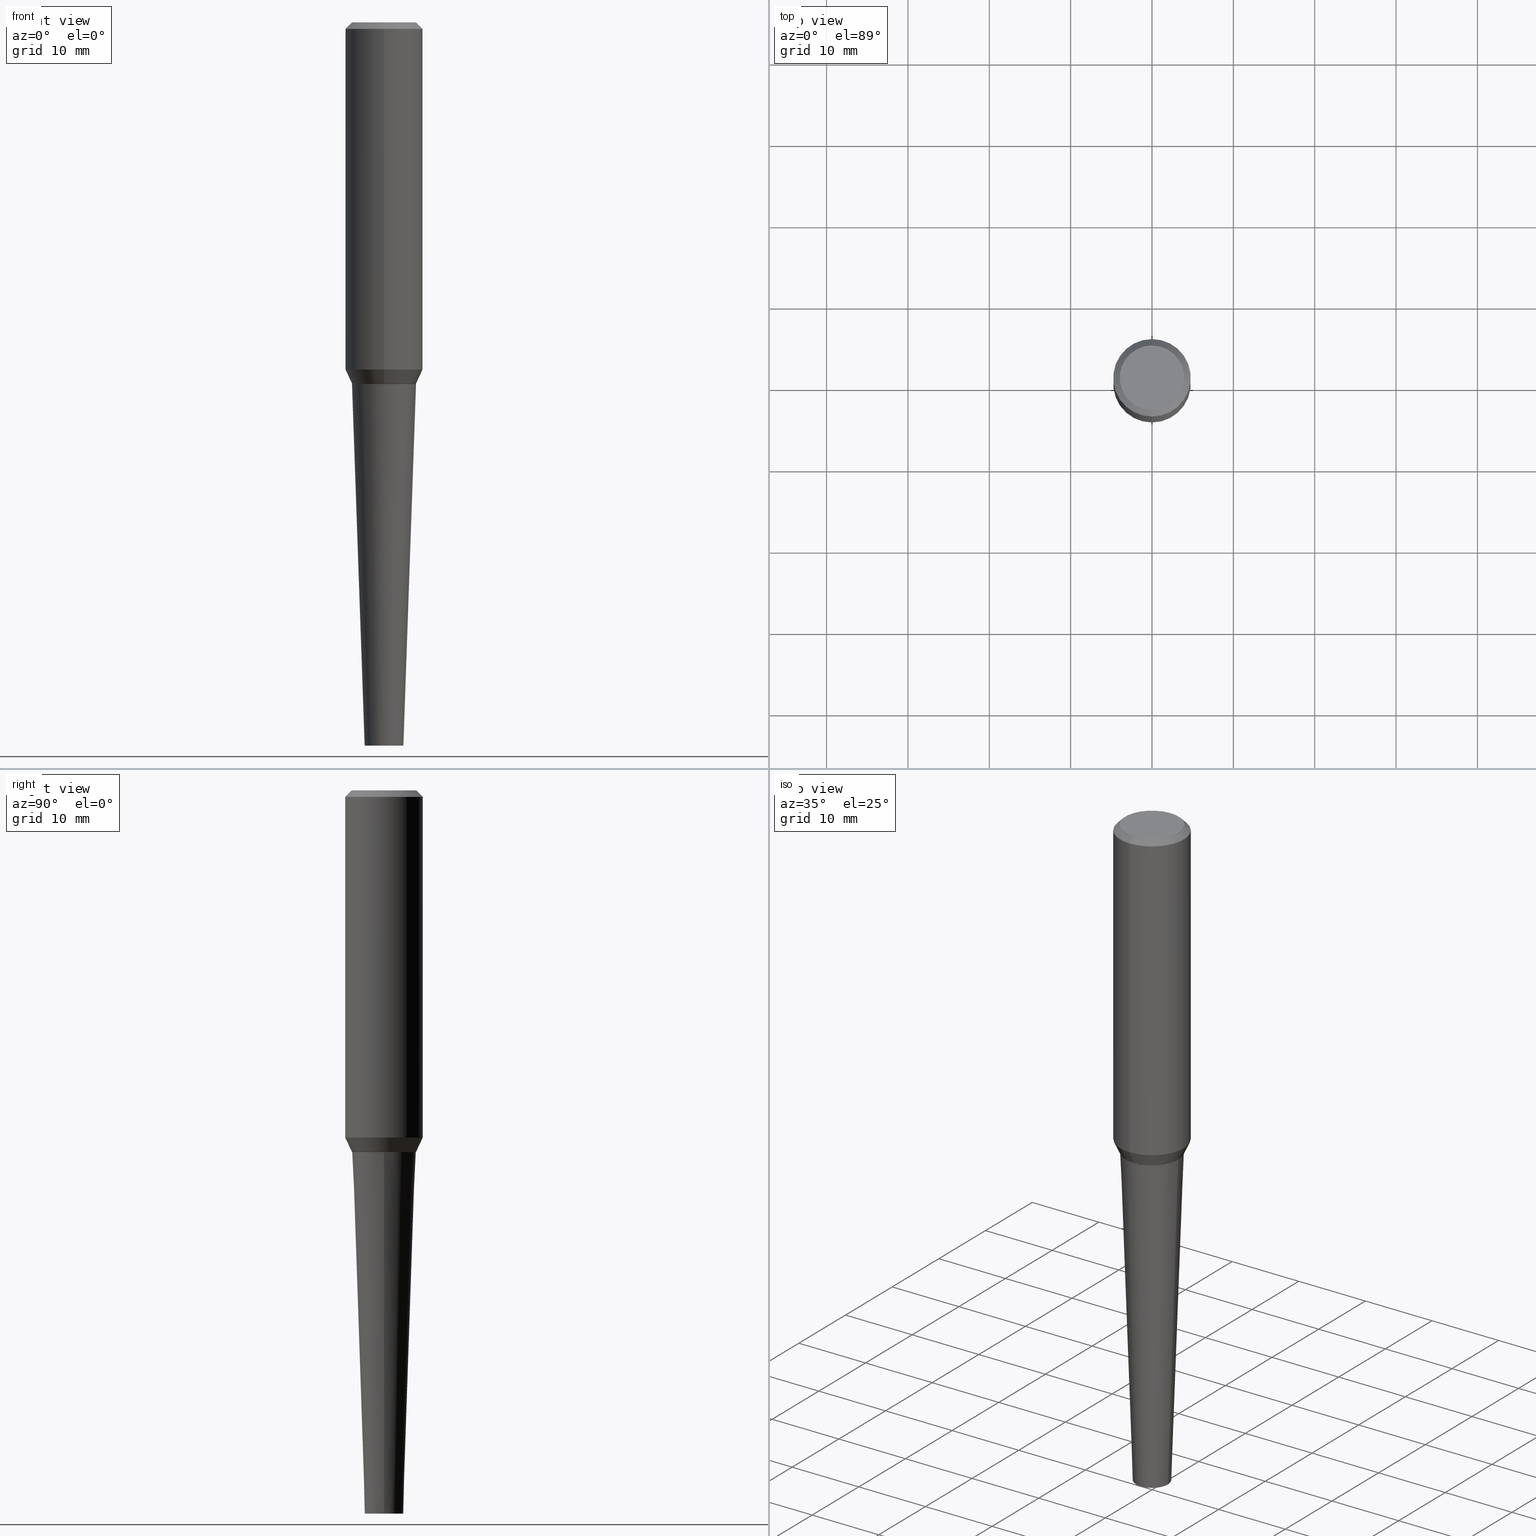
[diagram: canonical four-view strip — front | top / right | iso, engineering-drawing reading convention]
A machine part, canonical four-view strip (front | top / right | iso — engineering-drawing reading convention). The complete STEP part file that produces these views, byte-faithful:
ISO-10303-21;
HEADER;
FILE_DESCRIPTION (( 'STEP AP203' ),
    '1' );
FILE_NAME ('32354.STEP',
    '2024-03-04T15:08:24',
    ( '' ),
    ( '' ),
    'SwSTEP 2.0',
    'SolidWorks 2023',
    '' );
FILE_SCHEMA (( 'CONFIG_CONTROL_DESIGN' ));
ENDSEC;

DATA;
#1 = EDGE_CURVE ( 'NONE', #62, #248, #333, .T. ) ;
#2 = DIRECTION ( 'NONE',  ( -6.982962677686265133E-15, -1.000000000000000000, 3.539549315485986263E-15 ) ) ;
#3 = EDGE_CURVE ( 'NONE', #72, #51, #289, .T. ) ;
#4 = CARTESIAN_POINT ( 'NONE',  ( 4.343405291364929891E-29, -6.018677160785112170E-15, -1.750000000000000222 ) ) ;
#5 = PRODUCT ( '32354', '32354', '', ( #375 ) ) ;
#6 = ORIENTED_EDGE ( 'NONE', *, *, #141, .T. ) ;
#7 = CARTESIAN_POINT ( 'NONE',  ( 1.332267629550185482E-15, 0.1874999999999996947, -5.735975815650552031E-16 ) ) ;
#8 = CLOSED_SHELL ( 'NONE', ( #317, #64, #347, #77, #98, #194, #269, #283, #113, #273 ) ) ;
#9 = CONICAL_SURFACE ( 'NONE', #153, 0.1875000000000004718, 0.7853981633974463916 ) ;
#10 = LOCAL_TIME ( 10, 8, 24.00000000000000000, #277 ) ;
#11 = DIRECTION ( 'NONE',  ( 2.676116305263811246E-29, -3.161180992522094459E-15, -1.000000000000000000 ) ) ;
#12 = CALENDAR_DATE ( 2024, 4, 3 ) ;
#13 = CARTESIAN_POINT ( 'NONE',  ( -1.084441645997670835E-15, -0.1552982159654152650, -1.749063130645136077 ) ) ;
#14 = CC_DESIGN_PERSON_AND_ORGANIZATION_ASSIGNMENT ( #314, #21, ( #121 ) ) ;
#15 = ADVANCED_BREP_SHAPE_REPRESENTATION ( '32354', ( #332, #48, #356 ), #393 ) ;
#16 = DIRECTION ( 'NONE',  ( -2.951127548643978022E-15, -0.4226182617406972208, 0.9063077870366510469 ) ) ;
#17 = ORIENTED_EDGE ( 'NONE', *, *, #310, .F. ) ;
#18 =( LENGTH_UNIT ( ) NAMED_UNIT ( * ) SI_UNIT ( $, .METRE. ) );
#19 = VECTOR ( 'NONE', #44, 39.37007874015748143 ) ;
#20 = ORIENTED_EDGE ( 'NONE', *, *, #363, .T. ) ;
#21 = PERSON_AND_ORGANIZATION_ROLE ( 'classification_officer' ) ;
#22 = APPROVAL ( #148, 'UNSPECIFIED' ) ;
#23 = AXIS2_PLACEMENT_3D ( 'NONE', #211, #303, #85 ) ;
#24 = VERTEX_POINT ( 'NONE', #65 ) ;
#25 = COORDINATED_UNIVERSAL_TIME_OFFSET ( 5, 0, .BEHIND. ) ;
#26 = VERTEX_POINT ( 'NONE', #361 ) ;
#27 = ORIENTED_EDGE ( 'NONE', *, *, #167, .F. ) ;
#28 = LINE ( 'NONE', #224, #164 ) ;
#29 = ORIENTED_EDGE ( 'NONE', *, *, #239, .F. ) ;
#30 = DIRECTION ( 'NONE',  ( -0.03489949670249375274, 3.737330261384596316E-15, 0.9993908270190959842 ) ) ;
#31 = LOCAL_TIME ( 10, 8, 24.00000000000000000, #25 ) ;
#32 = CARTESIAN_POINT ( 'NONE',  ( 1.200196710227326894E-15, 0.1562499999999999445, -4.302941219615301370E-16 ) ) ;
#33 = EDGE_CURVE ( 'NONE', #275, #383, #80, .T. ) ;
#34 = DIRECTION ( 'NONE',  ( -2.676116305263811806E-29, 3.161180992522094064E-15, 1.000000000000000000 ) ) ;
#35 = DIRECTION ( 'NONE',  ( -2.445468806185136597E-29, 3.491481338843145583E-15, 1.000000000000000000 ) ) ;
#36 = CARTESIAN_POINT ( 'NONE',  ( 4.156093693560677196E-29, -5.797414033508819911E-15, -1.680006181930203013 ) ) ;
#37 = DIRECTION ( 'NONE',  ( 1.000000000000000000, -6.982962677686257244E-15, 0.000000000000000000 ) ) ;
#38 = AXIS2_PLACEMENT_3D ( 'NONE', #360, #34, #389 ) ;
#39 = DIRECTION ( 'NONE',  ( 2.676116305263811806E-29, -3.161180992522094064E-15, -1.000000000000000000 ) ) ;
#40 = DIRECTION ( 'NONE',  ( -2.676116305263811806E-29, 3.161180992522094064E-15, 1.000000000000000000 ) ) ;
#41 = PERSON_AND_ORGANIZATION_ROLE ( 'design_owner' ) ;
#42 = CYLINDRICAL_SURFACE ( 'NONE', #267, 0.1875000000000001943 ) ;
#43 = DESIGN_CONTEXT ( 'detailed design', #53, 'design' ) ;
#44 = DIRECTION ( 'NONE',  ( -2.676116305263811806E-29, 3.161180992522094459E-15, 1.000000000000000000 ) ) ;
#45 = EDGE_CURVE ( 'NONE', #403, #308, #387, .T. ) ;
#46 = VECTOR ( 'NONE', #300, 39.37007874015748143 ) ;
#47 = CARTESIAN_POINT ( 'NONE',  ( -1.084441645997671229E-15, -0.1552982159654153482, -1.749063130645136077 ) ) ;
#48 = MANIFOLD_SOLID_BREP ( 'Body-Move/Copy2[2]', #8 ) ;
#49 = EDGE_LOOP ( 'NONE', ( #343, #132, #99, #350 ) ) ;
#50 = DIRECTION ( 'NONE',  ( 6.982962677686265922E-15, 1.000000000000000000, -3.161180992522094459E-15 ) ) ;
#51 = VERTEX_POINT ( 'NONE', #198 ) ;
#52 = EDGE_CURVE ( 'NONE', #63, #62, #284, .T. ) ;
#53 = APPLICATION_CONTEXT ( 'configuration controlled 3d designs of mechanical parts and assemblies' ) ;
#54 = CIRCLE ( 'NONE', #372, 0.09375000000000006939 ) ;
#55 = ORIENTED_EDGE ( 'NONE', *, *, #180, .T. ) ;
#56 = EDGE_LOOP ( 'NONE', ( #222, #223 ) ) ;
#57 = EDGE_LOOP ( 'NONE', ( #27, #83, #226, #410 ) ) ;
#58 = EDGE_CURVE ( 'NONE', #62, #63, #183, .T. ) ;
#59 = CLOSED_SHELL ( 'NONE', ( #404, #376, #92, #299 ) ) ;
#60 = APPROVAL_PERSON_ORGANIZATION ( #249, #177, #215 ) ;
#61 = ORIENTED_EDGE ( 'NONE', *, *, #130, .T. ) ;
#62 = VERTEX_POINT ( 'NONE', #189 ) ;
#63 = VERTEX_POINT ( 'NONE', #110 ) ;
#64 = ADVANCED_FACE ( 'NONE', ( #352 ), #328, .T. ) ;
#65 = CARTESIAN_POINT ( 'NONE',  ( 0.1548613466105459580, -7.191483346573183541E-15, -1.750000000000000000 ) ) ;
#66 = CARTESIAN_POINT ( 'NONE',  ( 6.546527510331736872E-16, 0.09374999999998785694, -3.500000000000000444 ) ) ;
#67 = VERTEX_POINT ( 'NONE', #32 ) ;
#68 = FACE_OUTER_BOUND ( 'NONE', #281, .T. ) ;
#69 = CIRCLE ( 'NONE', #111, 0.1548613466105459580 ) ;
#70 = DIRECTION ( 'NONE',  ( -2.676116305263811806E-29, 3.161180992522094064E-15, 1.000000000000000000 ) ) ;
#71 = FACE_OUTER_BOUND ( 'NONE', #341, .T. ) ;
#72 = VERTEX_POINT ( 'NONE', #202 ) ;
#73 = DIRECTION ( 'NONE',  ( 2.438088387897960049E-29, -3.491481338843145188E-15, -1.000000000000000000 ) ) ;
#74 = AXIS2_PLACEMENT_3D ( 'NONE', #4, #139, #390 ) ;
#75 = CARTESIAN_POINT ( 'NONE',  ( -3.397982428467408395E-30, -4.866104238714468673E-16, 1.912385453283800096E-17 ) ) ;
#76 = PLANE ( 'NONE',  #406 ) ;
#77 = ADVANCED_FACE ( 'NONE', ( #260 ), #329, .T. ) ;
#78 = APPLICATION_PROTOCOL_DEFINITION ( 'international standard', 'config_control_design', 1994, #53 ) ;
#79 = CARTESIAN_POINT ( 'NONE',  ( -2.561696083072463877E-30, -5.853973298877627382E-16, -0.03125000000000010408 ) ) ;
#80 = CIRCLE ( 'NONE', #254, 0.1875000000000004718 ) ;
#81 = CC_DESIGN_APPROVAL ( #398, ( #278 ) ) ;
#82 = CARTESIAN_POINT ( 'NONE',  ( -1.286343374582167887E-15, -0.1875000000000010270, -0.03124999999999950734 ) ) ;
#83 = ORIENTED_EDGE ( 'NONE', *, *, #52, .T. ) ;
#84 = EDGE_CURVE ( 'NONE', #248, #72, #220, .T. ) ;
#85 = DIRECTION ( 'NONE',  ( -6.982962677686265922E-15, -1.000000000000000000, 3.161180992522094459E-15 ) ) ;
#86 = EDGE_LOOP ( 'NONE', ( #182, #379, #188, #212 ) ) ;
#87 = CC_DESIGN_APPROVAL ( #177, ( #262 ) ) ;
#88 = CIRCLE ( 'NONE', #23, 0.1562500000000004163 ) ;
#89 = APPROVAL_STATUS ( 'not_yet_approved' ) ;
#90 = ORIENTED_EDGE ( 'NONE', *, *, #363, .F. ) ;
#91 = CALENDAR_DATE ( 2024, 4, 3 ) ;
#92 = ADVANCED_FACE ( 'NONE', ( #71 ), #392, .T. ) ;
#93 = ORIENTED_EDGE ( 'NONE', *, *, #239, .T. ) ;
#94 = SECURITY_CLASSIFICATION_LEVEL ( 'unclassified' ) ;
#95 = AXIS2_PLACEMENT_3D ( 'NONE', #134, #40, #320 ) ;
#96 = ORGANIZATION ( 'UNSPECIFIED', 'UNSPECIFIED', '' ) ;
#97 = ORIENTED_EDGE ( 'NONE', *, *, #127, .T. ) ;
#98 = ADVANCED_FACE ( 'NONE', ( #166 ), #131, .T. ) ;
#99 = ORIENTED_EDGE ( 'NONE', *, *, #33, .F. ) ;
#100 = CARTESIAN_POINT ( 'NONE',  ( -3.397982428467409796E-30, -4.866104238714466701E-16, 6.364040812004835480E-17 ) ) ;
#101 = CARTESIAN_POINT ( 'NONE',  ( 8.559140821647976968E-29, -1.222018468595100934E-14, -3.500000000000000000 ) ) ;
#102 = ORIENTED_EDGE ( 'NONE', *, *, #58, .F. ) ;
#103 = DIRECTION ( 'NONE',  ( -2.676116305263811806E-29, 3.161180992522094064E-15, 1.000000000000000000 ) ) ;
#104 = DIRECTION ( 'NONE',  ( 1.000000000000000000, -6.982962677686257244E-15, 0.000000000000000000 ) ) ;
#105 = CIRCLE ( 'NONE', #221, 0.1875000000000004718 ) ;
#106 = DIRECTION ( 'NONE',  ( -2.676116305263811806E-29, 3.161180992522094064E-15, 1.000000000000000000 ) ) ;
#107 = PRODUCT_RELATED_PRODUCT_CATEGORY ( 'detail', '', ( #5 ) ) ;
#108 = CC_DESIGN_PERSON_AND_ORGANIZATION_ASSIGNMENT ( #181, #309, ( #262 ) ) ;
#109 = DIRECTION ( 'NONE',  ( -2.676116305263811806E-29, 3.161180992522094064E-15, 1.000000000000000000 ) ) ;
#110 = CARTESIAN_POINT ( 'NONE',  ( 1.100131763735019205E-15, 0.1543613466105398235, -1.750000000000000666 ) ) ;
#111 = AXIS2_PLACEMENT_3D ( 'NONE', #203, #225, #414 ) ;
#112 = CARTESIAN_POINT ( 'NONE',  ( -0.09375000000000006939, -8.281893582654957434E-15, -3.500000000000000000 ) ) ;
#113 = ADVANCED_FACE ( 'NONE', ( #334 ), #42, .T. ) ;
#114 = DIRECTION ( 'NONE',  ( 1.000000000000000000, -6.982962677686257244E-15, 0.000000000000000000 ) ) ;
#115 = DIRECTION ( 'NONE',  ( 0.000000000000000000, 0.000000000000000000, 1.000000000000000000 ) ) ;
#116 = CARTESIAN_POINT ( 'NONE',  ( -1.286343374582167887E-15, -0.1875000000000010270, -0.03124999999999950734 ) ) ;
#117 = APPROVAL_STATUS ( 'not_yet_approved' ) ;
#118 = EDGE_CURVE ( 'NONE', #133, #51, #201, .T. ) ;
#119 = AXIS2_PLACEMENT_3D ( 'NONE', #388, #136, #2 ) ;
#120 = AXIS2_PLACEMENT_3D ( 'NONE', #237, #241, #371 ) ;
#121 = SECURITY_CLASSIFICATION ( '', '', #94 ) ;
#122 = CARTESIAN_POINT ( 'NONE',  ( 8.559140821647976968E-29, -1.222018468595100934E-14, -3.500000000000000000 ) ) ;
#123 =( NAMED_UNIT ( * ) PLANE_ANGLE_UNIT ( ) SI_UNIT ( $, .RADIAN. ) );
#124 = APPROVAL_DATE_TIME ( #405, #177 ) ;
#125 = AXIS2_PLACEMENT_3D ( 'NONE', #168, #106, #355 ) ;
#126 = CONICAL_SURFACE ( 'NONE', #342, 0.09375000000000006939, 0.03490658503987936756 ) ;
#127 = EDGE_CURVE ( 'NONE', #26, #67, #208, .T. ) ;
#128 = ORIENTED_EDGE ( 'NONE', *, *, #45, .T. ) ;
#129 = COORDINATED_UNIVERSAL_TIME_OFFSET ( 5, 0, .BEHIND. ) ;
#130 = EDGE_CURVE ( 'NONE', #72, #248, #147, .T. ) ;
#131 = CONICAL_SURFACE ( 'NONE', #74, 0.1543613466105458465, 0.7853981633974300713 ) ;
#132 = ORIENTED_EDGE ( 'NONE', *, *, #227, .T. ) ;
#133 = VERTEX_POINT ( 'NONE', #318 ) ;
#134 = CARTESIAN_POINT ( 'NONE',  ( -3.397982428467408395E-30, -4.866104238714468673E-16, 1.912385453283800096E-17 ) ) ;
#135 = CC_DESIGN_DATE_AND_TIME_ASSIGNMENT ( #408, #218, ( #121 ) ) ;
#136 = DIRECTION ( 'NONE',  ( -2.676116305263811806E-29, 3.161180992522094064E-15, 1.000000000000000000 ) ) ;
#137 = VECTOR ( 'NONE', #354, 39.37007874015748143 ) ;
#138 = CARTESIAN_POINT ( 'NONE',  ( 1.103460192307291292E-15, 0.1552982159654033023, -1.749063130645137187 ) ) ;
#139 = DIRECTION ( 'NONE',  ( -2.676116305263811806E-29, 3.161180992522094064E-15, 1.000000000000000000 ) ) ;
#140 = UNCERTAINTY_MEASURE_WITH_UNIT (LENGTH_MEASURE( 1.000000000000000082E-05 ), #402, 'distance_accuracy_value', 'NONE');
#141 = EDGE_CURVE ( 'NONE', #308, #344, #282, .T. ) ;
#142 = FACE_OUTER_BOUND ( 'NONE', #369, .T. ) ;
#143 = PLANE ( 'NONE',  #413 ) ;
#144 = FACE_OUTER_BOUND ( 'NONE', #407, .T. ) ;
#145 = PERSON_AND_ORGANIZATION ( #285, #96 ) ;
#146 = DIRECTION ( 'NONE',  ( -1.000000000000000000, 6.982962677686265922E-15, -4.876176775795935793E-29 ) ) ;
#147 = CIRCLE ( 'NONE', #38, 0.1552982159654093253 ) ;
#148 = APPROVAL_STATUS ( 'not_yet_approved' ) ;
#149 = ORIENTED_EDGE ( 'NONE', *, *, #245, .F. ) ;
#150 = EDGE_CURVE ( 'NONE', #51, #133, #173, .T. ) ;
#151 = ORIENTED_EDGE ( 'NONE', *, *, #214, .F. ) ;
#152 = PERSON_AND_ORGANIZATION ( #285, #96 ) ;
#153 = AXIS2_PLACEMENT_3D ( 'NONE', #79, #176, #394 ) ;
#154 = ORIENTED_EDGE ( 'NONE', *, *, #386, .T. ) ;
#155 = CARTESIAN_POINT ( 'NONE',  ( 4.231862305310980170E-29, -6.178413065446867996E-15, -1.750000000000000222 ) ) ;
#156 = EDGE_LOOP ( 'NONE', ( #217, #256, #316, #323 ) ) ;
#157 = AXIS2_PLACEMENT_3D ( 'NONE', #36, #161, #264 ) ;
#158 = ORIENTED_EDGE ( 'NONE', *, *, #245, .T. ) ;
#159 = FACE_OUTER_BOUND ( 'NONE', #56, .T. ) ;
#160 = CARTESIAN_POINT ( 'NONE',  ( 4.343405291364929891E-29, -6.018677160785112170E-15, -1.750000000000000222 ) ) ;
#161 = DIRECTION ( 'NONE',  ( -2.676116305263811806E-29, 3.161180992522094064E-15, 1.000000000000000000 ) ) ;
#162 = DIRECTION ( 'NONE',  ( -4.937700262164458901E-15, -0.7071067811865323627, 0.7071067811865626718 ) ) ;
#163 = AXIS2_PLACEMENT_3D ( 'NONE', #160, #325, #228 ) ;
#164 = VECTOR ( 'NONE', #351, 39.37007874015748143 ) ;
#165 = CC_DESIGN_SECURITY_CLASSIFICATION ( #121, ( #262 ) ) ;
#166 = FACE_OUTER_BOUND ( 'NONE', #57, .T. ) ;
#167 = EDGE_CURVE ( 'NONE', #63, #72, #28, .T. ) ;
#168 = CARTESIAN_POINT ( 'NONE',  ( 4.340898120008478024E-29, -6.015715547188041280E-15, -1.749063130645136743 ) ) ;
#169 = CARTESIAN_POINT ( 'NONE',  ( 1.081391003597721666E-15, 0.1548613466105398240, -1.750000000000000666 ) ) ;
#170 = PERSON_AND_ORGANIZATION ( #285, #96 ) ;
#171 = LINE ( 'NONE', #340, #46 ) ;
#172 = DATE_AND_TIME ( #12, #382 ) ;
#173 = CIRCLE ( 'NONE', #157, 0.1874999999999999445 ) ;
#174 = LINE ( 'NONE', #266, #377 ) ;
#175 =( NAMED_UNIT ( * ) SI_UNIT ( $, .STERADIAN. ) SOLID_ANGLE_UNIT ( ) );
#176 = DIRECTION ( 'NONE',  ( 2.676116305263811806E-29, -3.161180992522094064E-15, -1.000000000000000000 ) ) ;
#177 = APPROVAL ( #89, 'UNSPECIFIED' ) ;
#178 = ORIENTED_EDGE ( 'NONE', *, *, #127, .F. ) ;
#179 = CALENDAR_DATE ( 2024, 4, 3 ) ;
#180 = EDGE_CURVE ( 'NONE', #133, #275, #288, .T. ) ;
#181 = PERSON_AND_ORGANIZATION ( #285, #96 ) ;
#182 = ORIENTED_EDGE ( 'NONE', *, *, #84, .T. ) ;
#183 = CIRCLE ( 'NONE', #200, 0.1543613466105458465 ) ;
#184 = CIRCLE ( 'NONE', #306, 0.1548613466105459580 ) ;
#185 = ORIENTED_EDGE ( 'NONE', *, *, #310, .T. ) ;
#186 = CALENDAR_DATE ( 2024, 4, 3 ) ;
#187 = EDGE_LOOP ( 'NONE', ( #17, #149, #93, #20 ) ) ;
#188 = ORIENTED_EDGE ( 'NONE', *, *, #118, .F. ) ;
#189 = CARTESIAN_POINT ( 'NONE',  ( -1.077899522258791490E-15, -0.1543613466105518417, -1.749999999999999556 ) ) ;
#190 = DIRECTION ( 'NONE',  ( -2.445468806185136597E-29, 3.491481338843145583E-15, 1.000000000000000000 ) ) ;
#191 = ORIENTED_EDGE ( 'NONE', *, *, #210, .T. ) ;
#192 = DIRECTION ( 'NONE',  ( -6.982962677686266711E-15, -1.000000000000000000, 2.913971193241881555E-15 ) ) ;
#193 = CARTESIAN_POINT ( 'NONE',  ( 8.559140821647976968E-29, -1.222018468595100934E-14, -3.500000000000000000 ) ) ;
#194 = ADVANCED_FACE ( 'NONE', ( #68 ), #324, .F. ) ;
#195 = CARTESIAN_POINT ( 'NONE',  ( 0.09375000000000006939, -1.287483743698409606E-14, -3.500000000000000000 ) ) ;
#196 = DIRECTION ( 'NONE',  ( 6.982962677686265922E-15, 1.000000000000000000, -3.164390592661096858E-15 ) ) ;
#197 = CARTESIAN_POINT ( 'NONE',  ( -0.09375000000000006939, -1.155405087117591384E-14, -3.500000000000000000 ) ) ;
#198 = CARTESIAN_POINT ( 'NONE',  ( 1.332267629550207570E-15, 0.1874999999999941436, -1.680006181930203457 ) ) ;
#199 = CARTESIAN_POINT ( 'NONE',  ( 4.279570410823988484E-29, -6.110092342975504671E-15, -1.750000000000000000 ) ) ;
#200 = AXIS2_PLACEMENT_3D ( 'NONE', #261, #70, #416 ) ;
#201 = CIRCLE ( 'NONE', #243, 0.1874999999999999445 ) ;
#202 = CARTESIAN_POINT ( 'NONE',  ( 1.103460192307291686E-15, 0.1552982159654033856, -1.749063130645137187 ) ) ;
#203 = CARTESIAN_POINT ( 'NONE',  ( 4.279570410823988484E-29, -6.110092342975504671E-15, -1.750000000000000000 ) ) ;
#204 = CARTESIAN_POINT ( 'NONE',  ( 4.156093693560677196E-29, -5.797414033508819911E-15, -1.680006181930203013 ) ) ;
#205 = CARTESIAN_POINT ( 'NONE',  ( 1.091087918388478582E-15, 0.1562499999999999445, -4.525523987551353755E-16 ) ) ;
#206 = LINE ( 'NONE', #7, #19 ) ;
#207 = AXIS2_PLACEMENT_3D ( 'NONE', #295, #357, #233 ) ;
#208 = CIRCLE ( 'NONE', #339, 0.1562500000000004163 ) ;
#209 = CC_DESIGN_APPROVAL ( #22, ( #121 ) ) ;
#210 = EDGE_CURVE ( 'NONE', #248, #133, #335, .T. ) ;
#211 = CARTESIAN_POINT ( 'NONE',  ( -3.397982428467409796E-30, -4.866104238714466701E-16, 6.364040812004835480E-17 ) ) ;
#212 = ORIENTED_EDGE ( 'NONE', *, *, #210, .F. ) ;
#213 = PERSON_AND_ORGANIZATION ( #285, #96 ) ;
#214 = EDGE_CURVE ( 'NONE', #403, #24, #174, .T. ) ;
#215 = APPROVAL_ROLE ( '' ) ;
#216 = CALENDAR_DATE ( 2024, 4, 3 ) ;
#217 = ORIENTED_EDGE ( 'NONE', *, *, #58, .T. ) ;
#218 = DATE_TIME_ROLE ( 'classification_date' ) ;
#219 = ORIENTED_EDGE ( 'NONE', *, *, #214, .T. ) ;
#220 = CIRCLE ( 'NONE', #125, 0.1552982159654093253 ) ;
#221 = AXIS2_PLACEMENT_3D ( 'NONE', #257, #109, #234 ) ;
#222 = ORIENTED_EDGE ( 'NONE', *, *, #45, .F. ) ;
#223 = ORIENTED_EDGE ( 'NONE', *, *, #305, .F. ) ;
#224 = CARTESIAN_POINT ( 'NONE',  ( 1.096803335162746329E-15, 0.1543613466105398235, -1.750000000000000666 ) ) ;
#225 = DIRECTION ( 'NONE',  ( -2.445468806185136597E-29, 3.491481338843145583E-15, 1.000000000000000000 ) ) ;
#226 = ORIENTED_EDGE ( 'NONE', *, *, #1, .T. ) ;
#227 = EDGE_CURVE ( 'NONE', #51, #383, #206, .T. ) ;
#228 = DIRECTION ( 'NONE',  ( -6.982962677686265133E-15, -1.000000000000000000, 3.539549315485986263E-15 ) ) ;
#229 = CONICAL_SURFACE ( 'NONE', #120, 0.1552982159654093253, 0.4363323129985830495 ) ;
#230 = CARTESIAN_POINT ( 'NONE',  ( 1.309305502066175600E-15, 0.1874999999999998890, -0.03125000000000069389 ) ) ;
#231 = DIRECTION ( 'NONE',  ( -2.676116305263811806E-29, 3.161180992522094064E-15, 1.000000000000000000 ) ) ;
#232 = CC_DESIGN_PERSON_AND_ORGANIZATION_ASSIGNMENT ( #280, #307, ( #262 ) ) ;
#233 = DIRECTION ( 'NONE',  ( 1.000000000000000000, -6.982962677686257244E-15, 0.000000000000000000 ) ) ;
#234 = DIRECTION ( 'NONE',  ( -6.982962677686265922E-15, -1.000000000000000000, 3.164390592661096858E-15 ) ) ;
#235 = AXIS2_PLACEMENT_3D ( 'NONE', #272, #395, #271 ) ;
#236 = DIRECTION ( 'NONE',  ( -2.676116305263811806E-29, 3.161180992522094064E-15, 1.000000000000000000 ) ) ;
#237 = CARTESIAN_POINT ( 'NONE',  ( 4.340898120008478024E-29, -6.015715547188041280E-15, -1.749063130645136743 ) ) ;
#238 = LINE ( 'NONE', #116, #322 ) ;
#239 = EDGE_CURVE ( 'NONE', #67, #383, #171, .T. ) ;
#240 = ORIENTED_EDGE ( 'NONE', *, *, #305, .T. ) ;
#241 = DIRECTION ( 'NONE',  ( -2.676116305263811806E-29, 3.161180992522094064E-15, 1.000000000000000000 ) ) ;
#242 = PERSON_AND_ORGANIZATION_ROLE ( 'creator' ) ;
#243 = AXIS2_PLACEMENT_3D ( 'NONE', #204, #263, #192 ) ;
#244 = FACE_OUTER_BOUND ( 'NONE', #250, .T. ) ;
#245 = EDGE_CURVE ( 'NONE', #67, #26, #88, .T. ) ;
#246 = VECTOR ( 'NONE', #162, 39.37007874015748143 ) ;
#247 = AXIS2_PLACEMENT_3D ( 'NONE', #359, #39, #196 ) ;
#248 = VERTEX_POINT ( 'NONE', #13 ) ;
#249 = PERSON_AND_ORGANIZATION ( #285, #96 ) ;
#250 = EDGE_LOOP ( 'NONE', ( #415, #61, #191, #258 ) ) ;
#251 = CC_DESIGN_DATE_AND_TIME_ASSIGNMENT ( #370, #373, ( #278 ) ) ;
#252 = APPROVAL_DATE_TIME ( #315, #22 ) ;
#253 = ORIENTED_EDGE ( 'NONE', *, *, #33, .T. ) ;
#254 = AXIS2_PLACEMENT_3D ( 'NONE', #265, #103, #291 ) ;
#255 = LOCAL_TIME ( 10, 8, 24.00000000000000000, #396 ) ;
#256 = ORIENTED_EDGE ( 'NONE', *, *, #167, .T. ) ;
#257 = CARTESIAN_POINT ( 'NONE',  ( -2.561696083072463877E-30, -5.853973298877627382E-16, -0.03125000000000010408 ) ) ;
#258 = ORIENTED_EDGE ( 'NONE', *, *, #150, .F. ) ;
#259 = CARTESIAN_POINT ( 'NONE',  ( -1.309305502066179544E-15, -0.1875000000000006661, 6.118452906307312050E-16 ) ) ;
#260 = FACE_OUTER_BOUND ( 'NONE', #156, .T. ) ;
#261 = CARTESIAN_POINT ( 'NONE',  ( 4.343405291364929891E-29, -6.018677160785112170E-15, -1.750000000000000222 ) ) ;
#262 = PRODUCT_DEFINITION_FORMATION_WITH_SPECIFIED_SOURCE ( 'ANY', '', #5, .NOT_KNOWN. ) ;
#263 = DIRECTION ( 'NONE',  ( -2.676116305263811806E-29, 3.161180992522094064E-15, 1.000000000000000000 ) ) ;
#264 = DIRECTION ( 'NONE',  ( -6.982962677686266711E-15, -1.000000000000000000, 2.913971193241881555E-15 ) ) ;
#265 = CARTESIAN_POINT ( 'NONE',  ( -2.561696083072463877E-30, -5.853973298877627382E-16, -0.03125000000000010408 ) ) ;
#266 = CARTESIAN_POINT ( 'NONE',  ( 0.09375000000000006939, -1.287483743698409606E-14, -3.500000000000000000 ) ) ;
#267 = AXIS2_PLACEMENT_3D ( 'NONE', #75, #236, #364 ) ;
#268 = DIRECTION ( 'NONE',  ( -2.445468806185136597E-29, 3.491481338843145583E-15, 1.000000000000000000 ) ) ;
#269 = ADVANCED_FACE ( 'NONE', ( #144 ), #76, .F. ) ;
#270 = APPROVAL_DATE_TIME ( #172, #398 ) ;
#271 = DIRECTION ( 'NONE',  ( -6.982962677686265133E-15, -1.000000000000000000, 3.518196235136077858E-15 ) ) ;
#272 = CARTESIAN_POINT ( 'NONE',  ( 4.340898120008478024E-29, -6.015715547188041280E-15, -1.749063130645136743 ) ) ;
#273 = ADVANCED_FACE ( 'NONE', ( #244 ), #321, .T. ) ;
#274 = APPROVAL_ROLE ( '' ) ;
#275 = VERTEX_POINT ( 'NONE', #82 ) ;
#276 = CARTESIAN_POINT ( 'NONE',  ( 0.000000000000000000, 0.000000000000000000, 0.000000000000000000 ) ) ;
#277 = COORDINATED_UNIVERSAL_TIME_OFFSET ( 5, 0, .BEHIND. ) ;
#278 = PRODUCT_DEFINITION ( 'UNKNOWN', '', #262, #43 ) ;
#279 = ORIENTED_EDGE ( 'NONE', *, *, #150, .T. ) ;
#280 = PERSON_AND_ORGANIZATION ( #285, #96 ) ;
#281 = EDGE_LOOP ( 'NONE', ( #102, #287 ) ) ;
#282 = LINE ( 'NONE', #197, #311 ) ;
#283 = ADVANCED_FACE ( 'NONE', ( #397 ), #9, .T. ) ;
#284 = CIRCLE ( 'NONE', #119, 0.1543613466105458465 ) ;
#285 = PERSON ( 'UNSPECIFIED', 'UNSPECIFIED', 'UNSPECIFIED', ('UNSPECIFIED'), ('UNSPECIFIED'), ('UNSPECIFIED') ) ;
#286 = AXIS2_PLACEMENT_3D ( 'NONE', #66, #73, #294 ) ;
#287 = ORIENTED_EDGE ( 'NONE', *, *, #52, .F. ) ;
#288 = LINE ( 'NONE', #259, #137 ) ;
#289 = LINE ( 'NONE', #138, #292 ) ;
#290 = DIRECTION ( 'NONE',  ( -2.445468806185136597E-29, 3.491481338843145583E-15, 1.000000000000000000 ) ) ;
#291 = DIRECTION ( 'NONE',  ( -6.982962677686265922E-15, -1.000000000000000000, 3.164390592661096858E-15 ) ) ;
#292 = VECTOR ( 'NONE', #391, 39.37007874015748143 ) ;
#293 = CARTESIAN_POINT ( 'NONE',  ( -1.077899522258791490E-15, -0.1543613466105518417, -1.749999999999999556 ) ) ;
#294 = DIRECTION ( 'NONE',  ( -1.000000000000000000, 6.982962677686265922E-15, -4.876176775795935793E-29 ) ) ;
#295 = CARTESIAN_POINT ( 'NONE',  ( 8.559140821647976968E-29, -1.222018468595100934E-14, -3.500000000000000000 ) ) ;
#296 = ORIENTED_EDGE ( 'NONE', *, *, #380, .F. ) ;
#297 = DIRECTION ( 'NONE',  ( 0.03489949670249375274, 3.245652539804642670E-15, 0.9993908270190959842 ) ) ;
#298 = COORDINATED_UNIVERSAL_TIME_OFFSET ( 5, 0, .BEHIND. ) ;
#299 = ADVANCED_FACE ( 'NONE', ( #304 ), #143, .F. ) ;
#300 = DIRECTION ( 'NONE',  ( 4.937700262164539365E-15, 0.7071067811865439090, -0.7071067811865511255 ) ) ;
#301 = LOCAL_TIME ( 10, 8, 24.00000000000000000, #129 ) ;
#302 = LENGTH_MEASURE_WITH_UNIT ( LENGTH_MEASURE( 0.02539999999999999897 ), #18 );
#303 = DIRECTION ( 'NONE',  ( -2.676116305263811806E-29, 3.161180992522094064E-15, 1.000000000000000000 ) ) ;
#304 = FACE_OUTER_BOUND ( 'NONE', #313, .T. ) ;
#305 = EDGE_CURVE ( 'NONE', #308, #403, #54, .T. ) ;
#306 = AXIS2_PLACEMENT_3D ( 'NONE', #199, #290, #331 ) ;
#307 = PERSON_AND_ORGANIZATION_ROLE ( 'design_supplier' ) ;
#308 = VERTEX_POINT ( 'NONE', #112 ) ;
#309 = PERSON_AND_ORGANIZATION_ROLE ( 'creator' ) ;
#310 = EDGE_CURVE ( 'NONE', #26, #275, #238, .T. ) ;
#311 = VECTOR ( 'NONE', #30, 39.37007874015748143 ) ;
#312 = APPLICATION_CONTEXT ( 'configuration controlled 3d designs of mechanical parts and assemblies' ) ;
#313 = EDGE_LOOP ( 'NONE', ( #378, #154 ) ) ;
#314 = PERSON_AND_ORGANIZATION ( #285, #96 ) ;
#315 = DATE_AND_TIME ( #186, #301 ) ;
#316 = ORIENTED_EDGE ( 'NONE', *, *, #84, .F. ) ;
#317 = ADVANCED_FACE ( 'NONE', ( #368 ), #229, .T. ) ;
#318 = CARTESIAN_POINT ( 'NONE',  ( -1.309305502066133001E-15, -0.1875000000000057454, -1.680006181930202347 ) ) ;
#319 = EDGE_LOOP ( 'NONE', ( #128, #6, #296, #151 ) ) ;
#320 = DIRECTION ( 'NONE',  ( -6.982962677686265922E-15, -1.000000000000000000, 3.161180992522093670E-15 ) ) ;
#321 = CONICAL_SURFACE ( 'NONE', #235, 0.1552982159654093253, 0.4363323129985830495 ) ;
#322 = VECTOR ( 'NONE', #365, 39.37007874015748143 ) ;
#323 = ORIENTED_EDGE ( 'NONE', *, *, #1, .F. ) ;
#324 = PLANE ( 'NONE',  #401 ) ;
#325 = DIRECTION ( 'NONE',  ( -2.676116305263811806E-29, 3.161180992522094064E-15, 1.000000000000000000 ) ) ;
#326 = DIRECTION ( 'NONE',  ( -6.982962677686265922E-15, -1.000000000000000000, 3.161180992522094459E-15 ) ) ;
#327 = CC_DESIGN_PERSON_AND_ORGANIZATION_ASSIGNMENT ( #213, #242, ( #278 ) ) ;
#328 = CYLINDRICAL_SURFACE ( 'NONE', #95, 0.1875000000000001943 ) ;
#329 = CONICAL_SURFACE ( 'NONE', #163, 0.1543613466105458465, 0.7853981633974300713 ) ;
#330 = APPROVAL_PERSON_ORGANIZATION ( #170, #398, #337 ) ;
#331 = DIRECTION ( 'NONE',  ( 1.000000000000000000, -6.982962677686268288E-15, 0.000000000000000000 ) ) ;
#332 = MANIFOLD_SOLID_BREP ( 'Body-Move/Copy2[1]', #59 ) ;
#333 = LINE ( 'NONE', #293, #246 ) ;
#334 = FACE_OUTER_BOUND ( 'NONE', #348, .T. ) ;
#335 = LINE ( 'NONE', #47, #362 ) ;
#336 = DIMENSIONAL_EXPONENTS ( 1.000000000000000000, 0.000000000000000000, 0.000000000000000000, 0.000000000000000000, 0.000000000000000000, 0.000000000000000000, 0.000000000000000000 ) ;
#337 = APPROVAL_ROLE ( '' ) ;
#338 = DIRECTION ( 'NONE',  ( -6.982962677686265922E-15, -1.000000000000000000, 3.161180992522094459E-15 ) ) ;
#339 = AXIS2_PLACEMENT_3D ( 'NONE', #100, #231, #326 ) ;
#340 = CARTESIAN_POINT ( 'NONE',  ( 1.309305502066175600E-15, 0.1874999999999998890, -0.03125000000000069389 ) ) ;
#341 = EDGE_LOOP ( 'NONE', ( #411, #240, #219, #381 ) ) ;
#342 = AXIS2_PLACEMENT_3D ( 'NONE', #101, #190, #104 ) ;
#343 = ORIENTED_EDGE ( 'NONE', *, *, #118, .T. ) ;
#344 = VERTEX_POINT ( 'NONE', #374 ) ;
#345 = CONICAL_SURFACE ( 'NONE', #247, 0.1875000000000004718, 0.7853981633974463916 ) ;
#346 = APPROVAL_PERSON_ORGANIZATION ( #152, #22, #274 ) ;
#347 = ADVANCED_FACE ( 'NONE', ( #142 ), #345, .T. ) ;
#348 = EDGE_LOOP ( 'NONE', ( #385, #279, #55, #90 ) ) ;
#349 = DIRECTION ( 'NONE',  ( -2.676116305263811246E-29, 3.161180992522094459E-15, 1.000000000000000000 ) ) ;
#350 = ORIENTED_EDGE ( 'NONE', *, *, #180, .F. ) ;
#351 = DIRECTION ( 'NONE',  ( 5.024295867787968515E-15, 0.7071067811865368036, 0.7071067811865582309 ) ) ;
#352 = FACE_OUTER_BOUND ( 'NONE', #49, .T. ) ;
#353 = PLANE ( 'NONE',  #286 ) ;
#354 = DIRECTION ( 'NONE',  ( -2.676116305263811806E-29, 3.161180992522094459E-15, 1.000000000000000000 ) ) ;
#355 = DIRECTION ( 'NONE',  ( -6.982962677686265133E-15, -1.000000000000000000, 3.518196235136077858E-15 ) ) ;
#356 = AXIS2_PLACEMENT_3D ( 'NONE', #276, #115, #399 ) ;
#357 = DIRECTION ( 'NONE',  ( -2.445468806185136597E-29, 3.491481338843145583E-15, 1.000000000000000000 ) ) ;
#358 = CC_DESIGN_PERSON_AND_ORGANIZATION_ASSIGNMENT ( #145, #41, ( #5 ) ) ;
#359 = CARTESIAN_POINT ( 'NONE',  ( -2.561696083072463877E-30, -5.853973298877627382E-16, -0.03125000000000010408 ) ) ;
#360 = CARTESIAN_POINT ( 'NONE',  ( 4.340898120008478024E-29, -6.015715547188041280E-15, -1.749063130645136743 ) ) ;
#361 = CARTESIAN_POINT ( 'NONE',  ( -1.179148093366988101E-15, -0.1562500000000008882, 5.575749382016267973E-16 ) ) ;
#362 = VECTOR ( 'NONE', #16, 39.37007874015748143 ) ;
#363 = EDGE_CURVE ( 'NONE', #383, #275, #105, .T. ) ;
#364 = DIRECTION ( 'NONE',  ( -6.982962677686265922E-15, -1.000000000000000000, 3.161180992522093670E-15 ) ) ;
#365 = DIRECTION ( 'NONE',  ( -4.851104656540952442E-15, -0.7071067811865483499, -0.7071067811865466846 ) ) ;
#366 = APPLICATION_PROTOCOL_DEFINITION ( 'international standard', 'config_control_design', 1994, #312 ) ;
#367 = PRODUCT_DEFINITION_SHAPE ( 'NONE', 'NONE',  #278 ) ;
#368 = FACE_OUTER_BOUND ( 'NONE', #86, .T. ) ;
#369 = EDGE_LOOP ( 'NONE', ( #178, #185, #253, #29 ) ) ;
#370 = DATE_AND_TIME ( #179, #255 ) ;
#371 = DIRECTION ( 'NONE',  ( -6.982962677686265133E-15, -1.000000000000000000, 3.518196235136077858E-15 ) ) ;
#372 = AXIS2_PLACEMENT_3D ( 'NONE', #122, #268, #114 ) ;
#373 = DATE_TIME_ROLE ( 'creation_date' ) ;
#374 = CARTESIAN_POINT ( 'NONE',  ( -0.1548613466105459580, -5.009736294134001028E-15, -1.750000000000000000 ) ) ;
#375 = MECHANICAL_CONTEXT ( 'NONE', #312, 'mechanical' ) ;
#376 = ADVANCED_FACE ( 'NONE', ( #159 ), #353, .T. ) ;
#377 = VECTOR ( 'NONE', #297, 39.37007874015748143 ) ;
#378 = ORIENTED_EDGE ( 'NONE', *, *, #380, .T. ) ;
#379 = ORIENTED_EDGE ( 'NONE', *, *, #3, .T. ) ;
#380 = EDGE_CURVE ( 'NONE', #24, #344, #184, .T. ) ;
#381 = ORIENTED_EDGE ( 'NONE', *, *, #386, .F. ) ;
#382 = LOCAL_TIME ( 10, 8, 24.00000000000000000, #298 ) ;
#383 = VERTEX_POINT ( 'NONE', #230 ) ;
#384 = FACE_OUTER_BOUND ( 'NONE', #319, .T. ) ;
#385 = ORIENTED_EDGE ( 'NONE', *, *, #227, .F. ) ;
#386 = EDGE_CURVE ( 'NONE', #344, #24, #69, .T. ) ;
#387 = CIRCLE ( 'NONE', #207, 0.09375000000000006939 ) ;
#388 = CARTESIAN_POINT ( 'NONE',  ( 4.343405291364929891E-29, -6.018677160785112170E-15, -1.750000000000000222 ) ) ;
#389 = DIRECTION ( 'NONE',  ( -6.982962677686265133E-15, -1.000000000000000000, 3.518196235136077858E-15 ) ) ;
#390 = DIRECTION ( 'NONE',  ( -6.982962677686265133E-15, -1.000000000000000000, 3.539549315485986263E-15 ) ) ;
#391 = DIRECTION ( 'NONE',  ( 3.002883358794126101E-15, 0.4226182617407029940, 0.9063077870366483824 ) ) ;
#392 = CONICAL_SURFACE ( 'NONE', #412, 0.09375000000000006939, 0.03490658503987936756 ) ;
#393 =( GEOMETRIC_REPRESENTATION_CONTEXT ( 3 ) GLOBAL_UNCERTAINTY_ASSIGNED_CONTEXT ( ( #140 ) ) GLOBAL_UNIT_ASSIGNED_CONTEXT ( ( #402, #123, #175 ) ) REPRESENTATION_CONTEXT ( 'NONE', 'WORKASPACE' ) );
#394 = DIRECTION ( 'NONE',  ( 6.982962677686265922E-15, 1.000000000000000000, -3.164390592661096858E-15 ) ) ;
#395 = DIRECTION ( 'NONE',  ( -2.676116305263811806E-29, 3.161180992522094064E-15, 1.000000000000000000 ) ) ;
#396 = COORDINATED_UNIVERSAL_TIME_OFFSET ( 5, 0, .BEHIND. ) ;
#397 = FACE_OUTER_BOUND ( 'NONE', #187, .T. ) ;
#398 = APPROVAL ( #117, 'UNSPECIFIED' ) ;
#399 = DIRECTION ( 'NONE',  ( 1.000000000000000000, 0.000000000000000000, 0.000000000000000000 ) ) ;
#400 = DIRECTION ( 'NONE',  ( 2.438088387897960049E-29, -3.491481338843145188E-15, -1.000000000000000000 ) ) ;
#401 = AXIS2_PLACEMENT_3D ( 'NONE', #155, #349, #338 ) ;
#402 =( CONVERSION_BASED_UNIT ( 'INCH', #302 ) LENGTH_UNIT ( ) NAMED_UNIT ( #336 ) );
#403 = VERTEX_POINT ( 'NONE', #195 ) ;
#404 = ADVANCED_FACE ( 'NONE', ( #384 ), #126, .T. ) ;
#405 = DATE_AND_TIME ( #216, #31 ) ;
#406 = AXIS2_PLACEMENT_3D ( 'NONE', #205, #11, #50 ) ;
#407 = EDGE_LOOP ( 'NONE', ( #158, #97 ) ) ;
#408 = DATE_AND_TIME ( #91, #10 ) ;
#409 = SHAPE_DEFINITION_REPRESENTATION ( #367, #15 ) ;
#410 = ORIENTED_EDGE ( 'NONE', *, *, #130, .F. ) ;
#411 = ORIENTED_EDGE ( 'NONE', *, *, #141, .F. ) ;
#412 = AXIS2_PLACEMENT_3D ( 'NONE', #193, #35, #37 ) ;
#413 = AXIS2_PLACEMENT_3D ( 'NONE', #169, #400, #146 ) ;
#414 = DIRECTION ( 'NONE',  ( 1.000000000000000000, -6.982962677686268288E-15, 0.000000000000000000 ) ) ;
#415 = ORIENTED_EDGE ( 'NONE', *, *, #3, .F. ) ;
#416 = DIRECTION ( 'NONE',  ( -6.982962677686265133E-15, -1.000000000000000000, 3.539549315485986263E-15 ) ) ;
ENDSEC;
END-ISO-10303-21;
